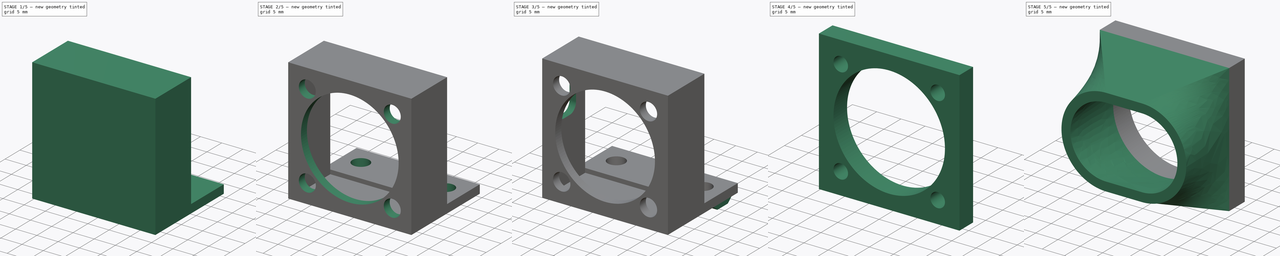
[diagram: build sequence overview — one tinted view per stage of 5, left to right]
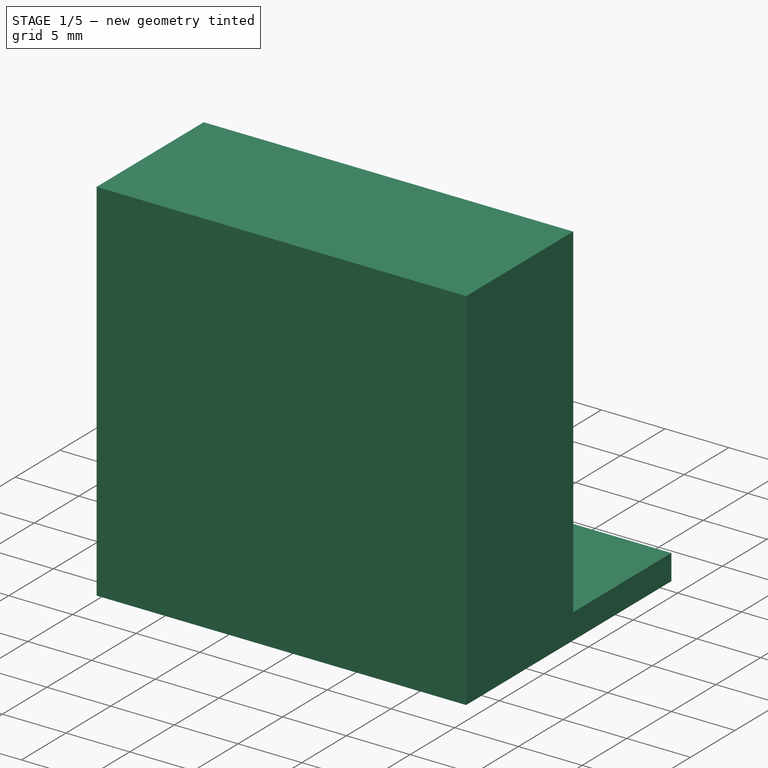
[diagram: stage 1 of 5 — iso view after this stage's code; geometry added in this stage tinted green]
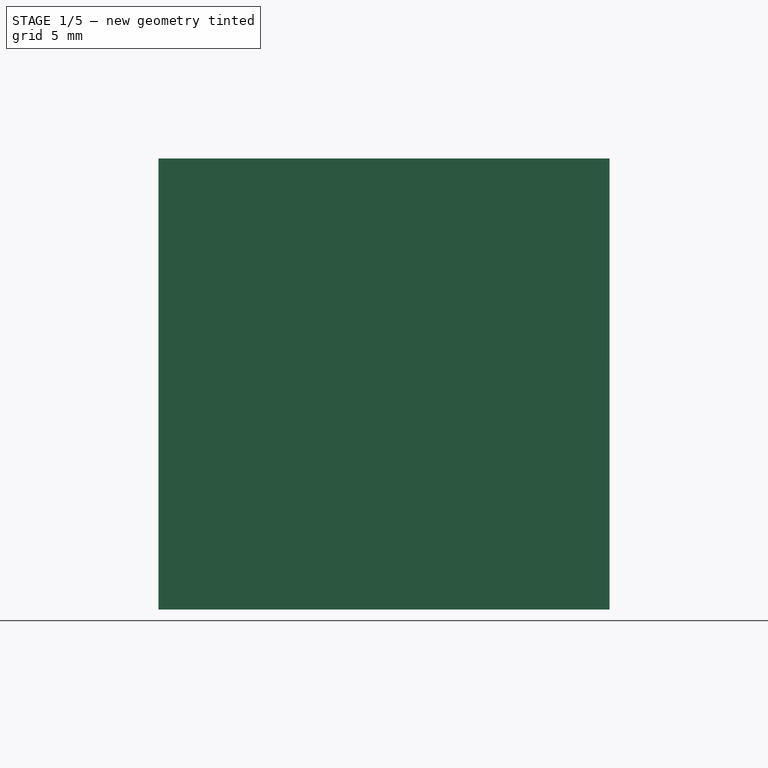
[diagram: stage 1 of 5 — front view after this stage's code; geometry added in this stage tinted green]
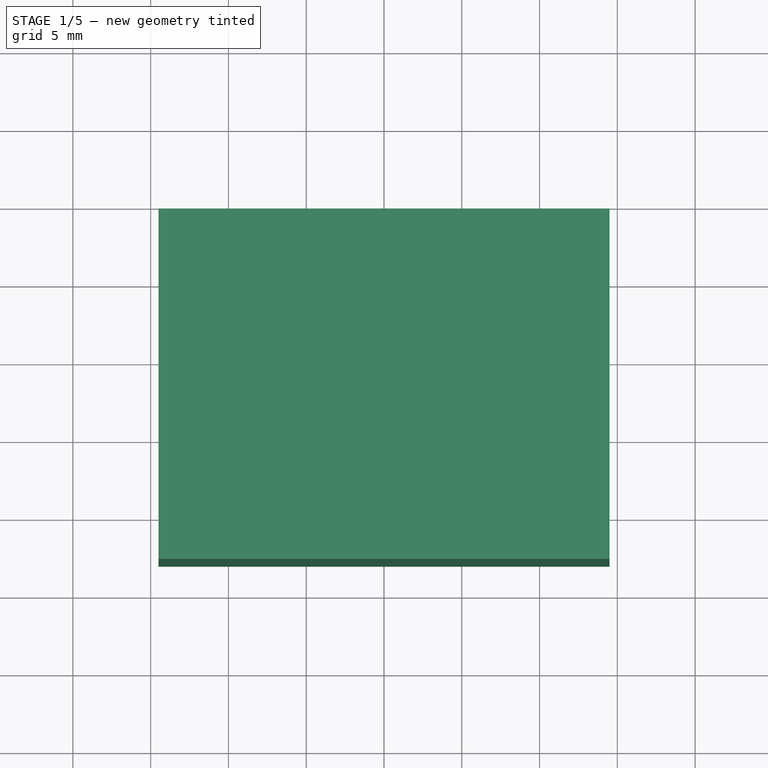
[diagram: stage 1 of 5 — top view after this stage's code; geometry added in this stage tinted green]
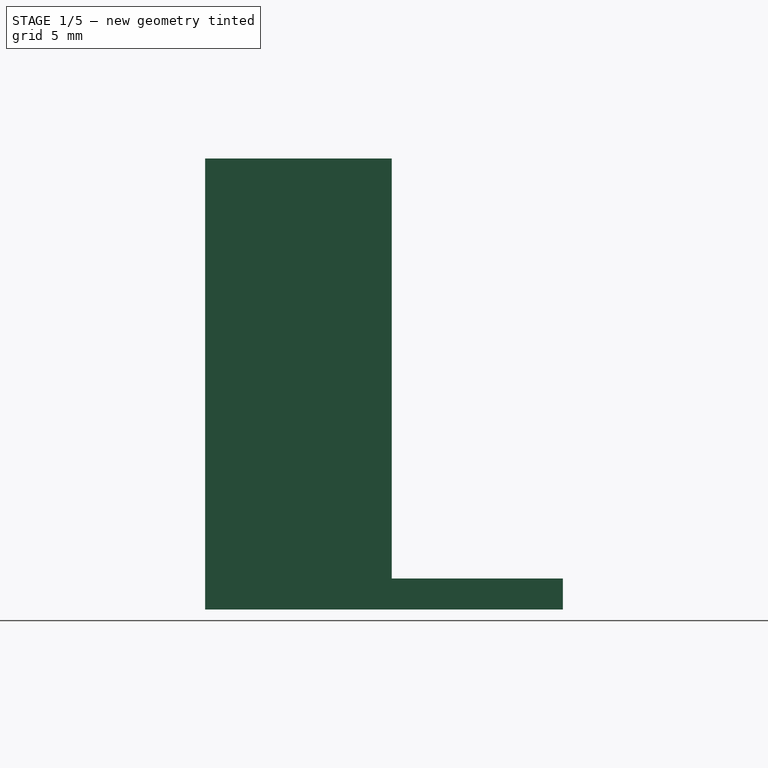
[diagram: stage 1 of 5 — right view after this stage's code; geometry added in this stage tinted green]
FCSTD DOCUMENT  (FreeCAD 1.0R39109 (Git))
Label: BedFans
License: All rights reserved
LicenseURL: https://en.wikipedia.org/wiki/All_rights_reserved
objects: Sketcher::SketchObject×11, PartDesign::Pocket×6, PartDesign::Pad×5, PartDesign::Chamfer×2, PartDesign::Body×2, PartDesign::SubShapeBinder×1, PartDesign::AdditiveLoft×1, PartDesign::Fillet×1, PartDesign::Hole×1
note: 73 computed .brp shape members not serialized (recipe doc carries the construction recipe); baked Part::Feature solids carry a one-line shape summary decoded from their .brp

FEATURE [Sketcher::SketchObject] Sketch  label="BaseMountSketch"
  ArcFitTolerance = 1e-06
  AttachmentSupport = -> [XY_Plane]
  FullyConstrained = true
  MakeInternals = false
  MapMode = 5
  sketch-geometry (5):
    g0: LineSegment StartX=-14.5 StartY=5 StartZ=0 EndX=-14.5 EndY=-5 EndZ=0
    g1: LineSegment StartX=14.5 StartY=-5 StartZ=0 EndX=14.5 EndY=5 EndZ=0
    g2: LineSegment StartX=14.5 StartY=5 StartZ=0 EndX=-14.5 EndY=5 EndZ=0
    g3: GeomPoint [constr] X=0 Y=0 Z=0
    g4: LineSegment StartX=-14.5 StartY=-5 StartZ=0 EndX=14.5 EndY=-5 EndZ=0
  constraints (12):
    c: Coincident(g0,g4)
    c: Coincident(g1,g2)
    c: Coincident(g2,g0)
    c: Vertical(g0)
    c: Vertical(g1)
    c: Horizontal(g2)
    c: Symmetric(g1,g0,g3)
    c: Coincident(g3,g-1)
    c: DistanceX(g4,g1) = 29
    c: DistanceY(g0,g0) = 10
    c: Horizontal(g4)
    c: Coincident(g1,g4)
FEATURE [PartDesign::Pad] Pad  label="BaseMountPad"
  Direction = (0,0,1)
  Length = 2
  Length2 = 10
  Profile = -> Sketch
  ReferenceAxis = -> Sketch [N_Axis]
  Refine = true
  Suppressed = false
  Type = 0
FEATURE [Sketcher::SketchObject] Sketch001  label="BaseFanMountSketch"
  ArcFitTolerance = 1e-06
  AttachmentSupport = -> [YZ_Plane]
  ExternalGeometry = -> [Pad]
  FullyConstrained = true
  MakeInternals = false
  MapMode = 5
  Placement = pos=(0,0,0) rot=(0.57735,0.57735,0.57735;2.0944rad)
  sketch-geometry (6):
    g0: LineSegment StartX=-5 StartY=0 StartZ=0 EndX=-18 EndY=0 EndZ=0
    g1: LineSegment StartX=-18 StartY=0 StartZ=0 EndX=-18 EndY=29 EndZ=0
    g2: LineSegment StartX=-18 StartY=29 StartZ=0 EndX=-6 EndY=29 EndZ=0
    g3: LineSegment StartX=-6 StartY=29 StartZ=0 EndX=-6 EndY=2 EndZ=0
    g4: LineSegment StartX=-6 StartY=2 StartZ=0 EndX=-5 EndY=2 EndZ=0
    g5: LineSegment StartX=-5 StartY=2 StartZ=0 EndX=-5 EndY=0 EndZ=0
  constraints (16):
    c: Coincident(g0,g-3)
    c: PointOnObject(g0,g-1)
    c: Coincident(g1,g0)
    c: Vertical(g1)
    c: Coincident(g2,g1)
    c: Horizontal(g2)
    c: Vertical(g3)
    c: Coincident(g4,g3)
    c: Coincident(g4,g-4)
    c: Horizontal(g4)
    c: Coincident(g3,g2)
    c: DistanceY(g1,g1) = 29
    c: DistanceX(g2,g2) = 12
    c: DistanceX(g0,g-3) = 23
    c: Coincident(g5,g4)
    c: Coincident(g5,g0)
FEATURE [PartDesign::Pad] Pad001  label="BaseFanMountPad"
  BaseFeature = -> Pad
  Direction = (1,0,0)
  Length = 29
  Length2 = 10
  Midplane = true
  Profile = -> Sketch001
  ReferenceAxis = -> Sketch001 [N_Axis]
  Refine = true
  Suppressed = false
  Type = 0
FEATURE [Sketcher::SketchObject] Sketch002  label="BaseFanMountSketch001"
  ArcFitTolerance = 1e-06
  AttachmentSupport = -> [Pad001]
  ExternalGeometry = -> [Pad001]
  FullyConstrained = true
  MakeInternals = false
  MapMode = 5
  Placement = pos=(0,-6,0) rot=(0,0.707107,0.707107;3.14159rad)
  sketch-geometry (5):
    g0: LineSegment StartX=-13 StartY=27 StartZ=0 EndX=-13 EndY=1 EndZ=0
    g1: LineSegment StartX=-13 StartY=1 StartZ=0 EndX=13 EndY=1 EndZ=0
    g2: LineSegment StartX=13 StartY=1 StartZ=0 EndX=13 EndY=27 EndZ=0
    g3: LineSegment StartX=13 StartY=27 StartZ=0 EndX=-13 EndY=27 EndZ=0
    g4: GeomPoint [constr] X=0 Y=14 Z=0
  constraints (13):
    c: Coincident(g0,g1)
    c: Coincident(g1,g2)
    c: Coincident(g2,g3)
    c: Coincident(g3,g0)
    c: Vertical(g0)
    c: Vertical(g2)
    c: Horizontal(g1)
    c: Horizontal(g3)
    c: Symmetric(g2,g0,g4)
    c: PointOnObject(g4,g-2)
    c: DistanceY(g2,g2) = 26
    c: DistanceX(g3,g3) = 26
    c: DistanceY(g0,g-3) = 2
FEATURE [PartDesign::Pocket] Pocket  label="BaseFanMountPocket"
  BaseFeature = -> Pad001
  Direction = (0,-1,2e-16)
  Length = 10
  Length2 = 5
  Profile = -> Sketch002
  ReferenceAxis = -> Sketch002 [N_Axis]
  Refine = true
  Suppressed = false
  Type = 0
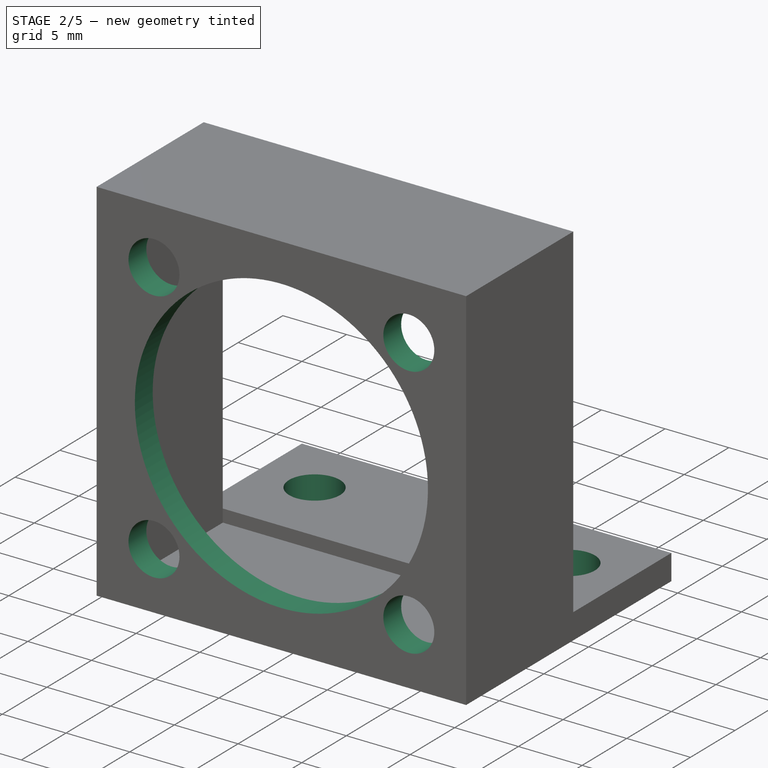
[diagram: stage 2 of 5 — iso view after this stage's code; geometry added in this stage tinted green]
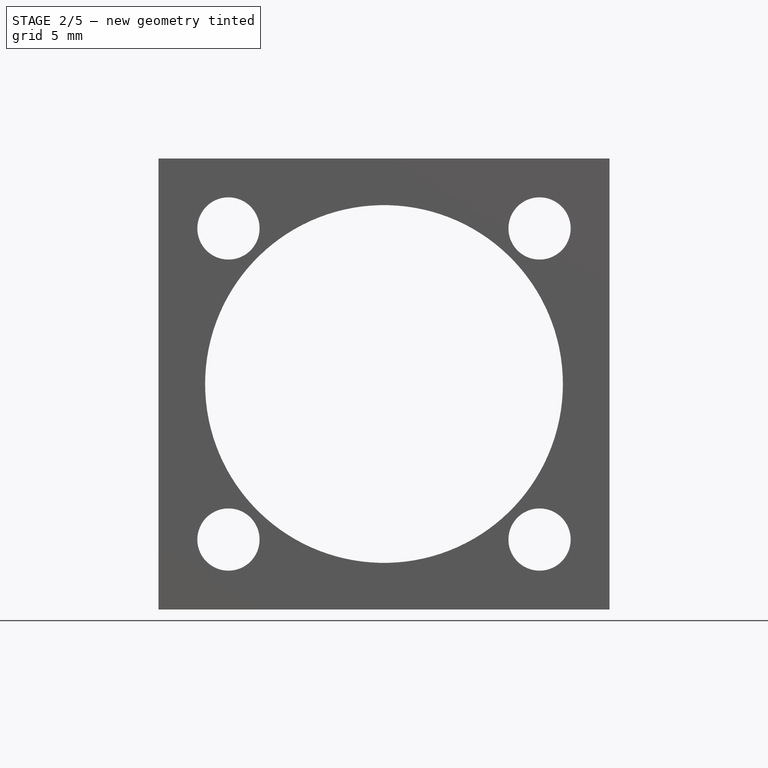
[diagram: stage 2 of 5 — front view after this stage's code; geometry added in this stage tinted green]
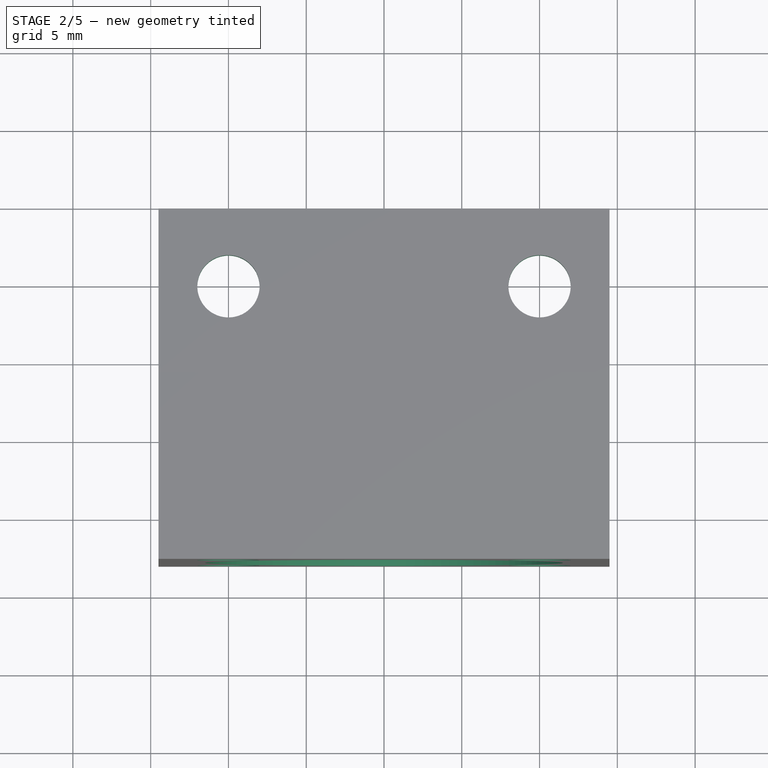
[diagram: stage 2 of 5 — top view after this stage's code; geometry added in this stage tinted green]
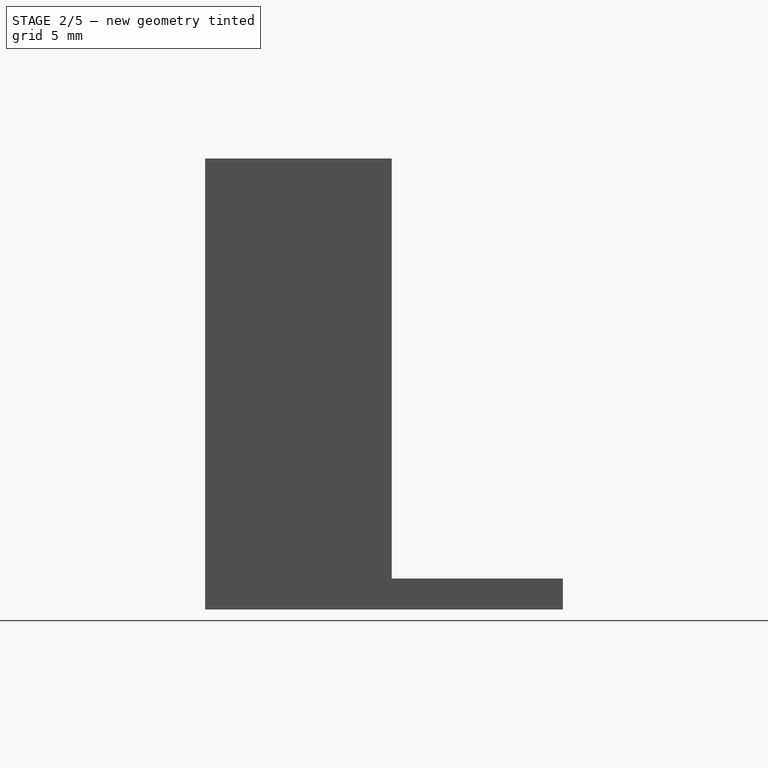
[diagram: stage 2 of 5 — right view after this stage's code; geometry added in this stage tinted green]
FEATURE [Sketcher::SketchObject] Sketch003  label="BaseFanDuctSketch"
  ArcFitTolerance = 1e-06
  AttachmentSupport = -> [Pocket]
  ExternalGeometry = -> [Pocket]
  FullyConstrained = true
  MakeInternals = false
  MapMode = 5
  Placement = pos=(0,-16,3.8e-15) rot=(0,0.707107,0.707107;3.14159rad)
  sketch-geometry (2):
    g0: GeomPoint X=2e-16 Y=14.5 Z=0
    g1: Circle CenterX=2e-16 CenterY=14.5 CenterZ=0 NormalX=0 NormalY=0 NormalZ=1 AngleXU=0 Radius=11.5
  constraints (3):
    c: Coincident(g1,g0)
    c: Diameter(g1) = 23
    c: Symmetric(g-4,g-3,g0)
FEATURE [PartDesign::Pocket] Pocket001  label="BaseFanDuctPocket"
  BaseFeature = -> Pocket
  Direction = (0,-1,2e-16)
  Length = 5
  Length2 = 5
  Profile = -> Sketch003
  ReferenceAxis = -> Sketch003 [N_Axis]
  Refine = true
  Suppressed = false
  Type = 0
FEATURE [Sketcher::SketchObject] Sketch004  label="BaseFanScrewholeSketch"
  ArcFitTolerance = 1e-06
  AttachmentSupport = -> [Pocket001]
  FullyConstrained = true
  MakeInternals = false
  MapMode = 5
  Placement = pos=(0,-16,3.8e-15) rot=(0,0.707107,0.707107;3.14159rad)
  sketch-geometry (9):
    g0: LineSegment [constr] StartX=-10 StartY=4.5 StartZ=0 EndX=10 EndY=4.5 EndZ=0
    g1: LineSegment [constr] StartX=10 StartY=4.5 StartZ=0 EndX=10 EndY=24.5 EndZ=0
    g2: LineSegment [constr] StartX=10 StartY=24.5 StartZ=0 EndX=-10 EndY=24.5 EndZ=0
    g3: LineSegment [constr] StartX=-10 StartY=24.5 StartZ=0 EndX=-10 EndY=4.5 EndZ=0
    g4: GeomPoint [constr] X=-2e-16 Y=14.5 Z=0
    g5: Circle CenterX=-10 CenterY=24.5 CenterZ=0 NormalX=0 NormalY=0 NormalZ=1 AngleXU=0 Radius=2
    g6: Circle CenterX=10 CenterY=24.5 CenterZ=0 NormalX=0 NormalY=0 NormalZ=1 AngleXU=0 Radius=2
    g7: Circle CenterX=10 CenterY=4.5 CenterZ=0 NormalX=0 NormalY=0 NormalZ=1 AngleXU=0 Radius=2
    g8: Circle CenterX=-10 CenterY=4.5 CenterZ=0 NormalX=0 NormalY=0 NormalZ=1 AngleXU=0 Radius=2
  constraints (20):
    c: Coincident(g0,g1)
    c: Coincident(g1,g2)
    c: Coincident(g2,g3)
    c: Coincident(g3,g0)
    c: Horizontal(g0)
    c: Horizontal(g2)
    c: Vertical(g1)
    c: Vertical(g3)
    c: Symmetric(g2,g0,g4)
    c: Coincident(g4,g-3)
    c: DistanceX(g2,g2) = 20
    c: DistanceY(g1,g1) = 20
    c: Coincident(g5,g2)
    c: Coincident(g6,g1)
    c: Coincident(g7,g0)
    c: Coincident(g8,g0)
    c: Equal(g5,g8)
    c: Equal(g5,g6)
    c: Equal(g5,g7)
    c: Diameter(g5) = 4
FEATURE [PartDesign::Pocket] Pocket003  label="BaseFanScrewholePocket"
  BaseFeature = -> Pocket001
  Direction = (0,-1,2e-16)
  Length = 5
  Length2 = 5
  Profile = -> Sketch004
  ReferenceAxis = -> Sketch004 [N_Axis]
  Refine = true
  Suppressed = false
  Type = 0
FEATURE [Sketcher::SketchObject] Sketch008  label="BaseMountSkrewholeSketch"
  ArcFitTolerance = 1e-06
  AttachmentSupport = -> [Pocket003]
  ExternalGeometry = -> [Pocket003]
  FullyConstrained = true
  MakeInternals = false
  MapMode = 5
  Placement = pos=(0,0,0) rot=(1,0,0;3.14159rad)
  sketch-geometry (2):
    g0: Circle CenterX=-10 CenterY=-4e-16 CenterZ=0 NormalX=0 NormalY=0 NormalZ=1 AngleXU=0 Radius=2
    g1: Circle CenterX=10 CenterY=-4e-16 CenterZ=0 NormalX=0 NormalY=0 NormalZ=1 AngleXU=0 Radius=2
  constraints (5):
    c: Symmetric(g0,g1,g-2)
    c: DistanceY(g-4,g0) = 5
    c: Equal(g0,g1)
    c: Diameter(g0) = 4
    c: DistanceX(g0,g1) = 20
FEATURE [PartDesign::Pocket] Pocket004  label="BaseMountSkrewholePocket"
  BaseFeature = -> Pocket003
  Direction = (0,0,1)
  Length = 5
  Length2 = 5
  Profile = -> Sketch008
  ReferenceAxis = -> Sketch008 [N_Axis]
  Refine = true
  Suppressed = false
  Type = 0
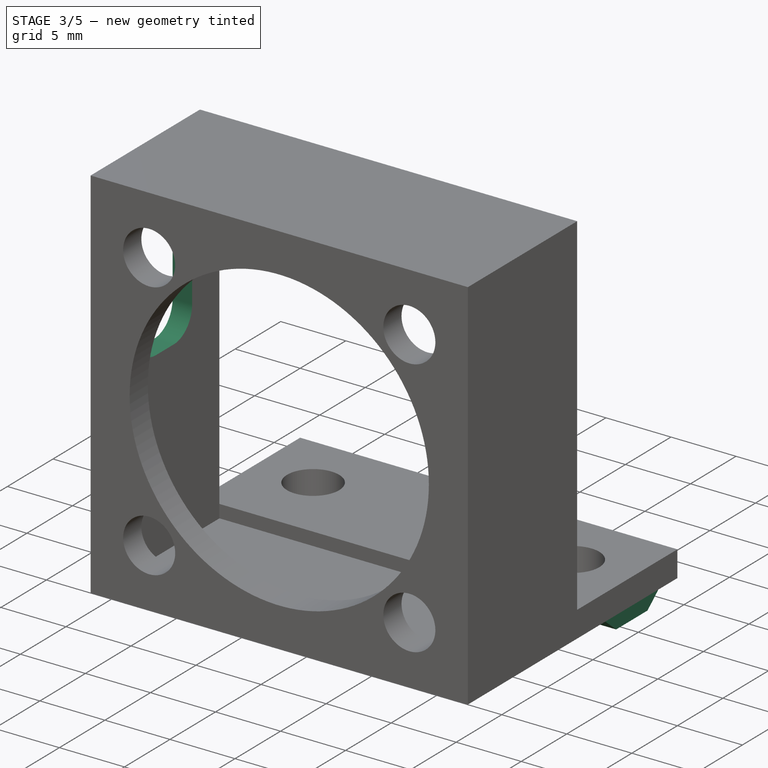
[diagram: stage 3 of 5 — iso view after this stage's code; geometry added in this stage tinted green]
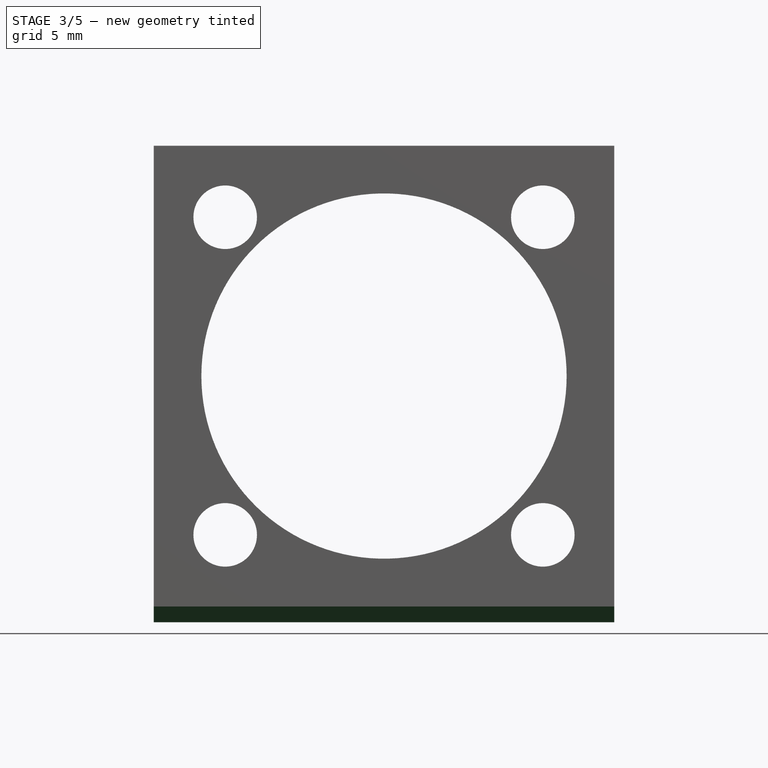
[diagram: stage 3 of 5 — front view after this stage's code; geometry added in this stage tinted green]
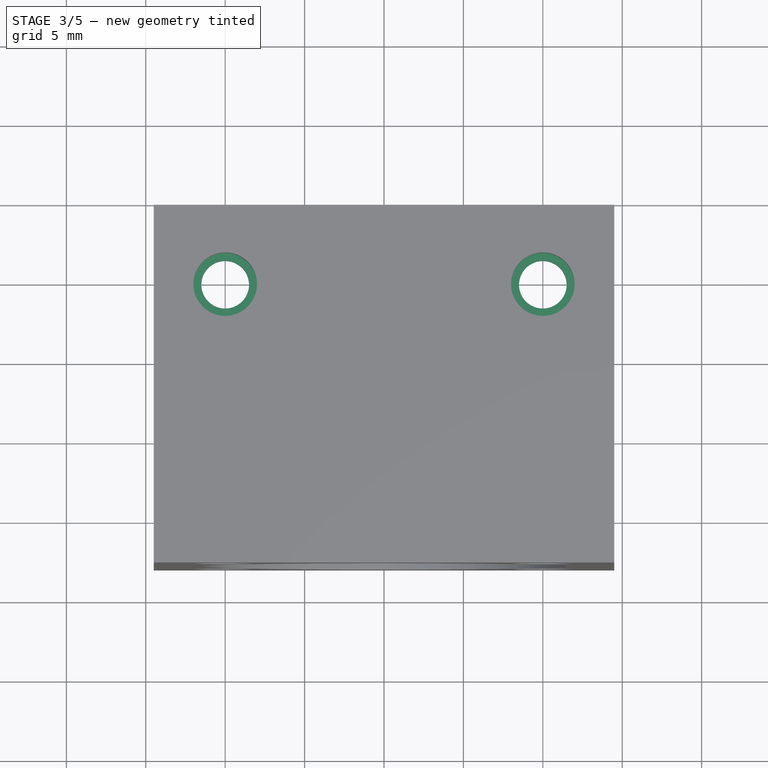
[diagram: stage 3 of 5 — top view after this stage's code; geometry added in this stage tinted green]
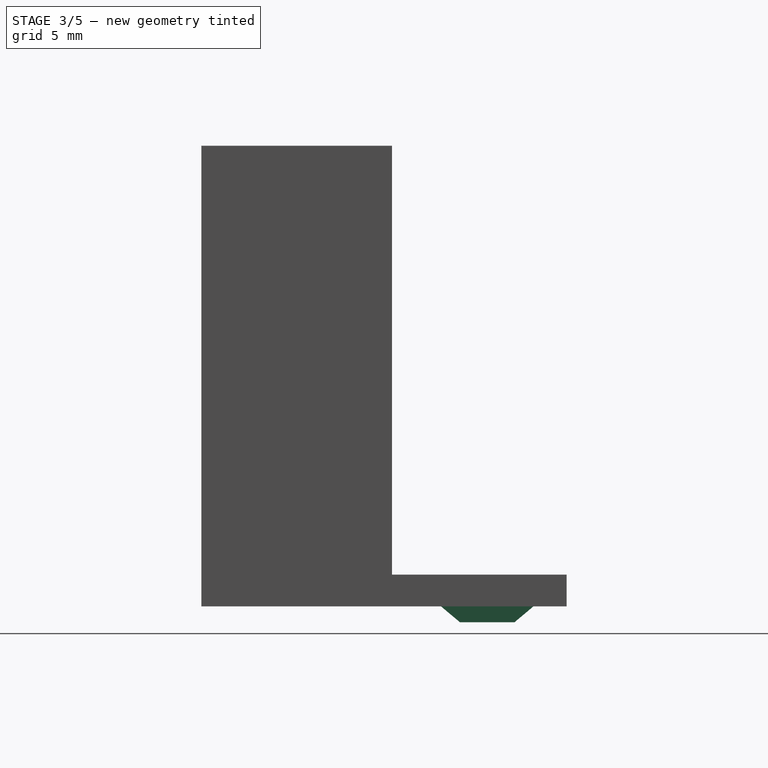
[diagram: stage 3 of 5 — right view after this stage's code; geometry added in this stage tinted green]
FEATURE [Sketcher::SketchObject] Sketch009  label="BaseMountExtrutionLipSketch"
  ArcFitTolerance = 1e-06
  AttachmentSupport = -> [Pocket004]
  ExternalGeometry = -> [Pocket004]
  FullyConstrained = true
  MakeInternals = false
  MapMode = 5
  Placement = pos=(0,0,0) rot=(1,0,0;3.14159rad)
  sketch-geometry (7):
    g0: Circle CenterX=-10 CenterY=0 CenterZ=0 NormalX=0 NormalY=0 NormalZ=1 AngleXU=0 Radius=1.5
    g1: Circle CenterX=10 CenterY=0 CenterZ=0 NormalX=0 NormalY=0 NormalZ=1 AngleXU=0 Radius=1.5
    g2: LineSegment StartX=-14.5 StartY=2.9 StartZ=0 EndX=-14.5 EndY=-2.9 EndZ=0
    g3: LineSegment StartX=-14.5 StartY=-2.9 StartZ=0 EndX=14.5 EndY=-2.9 EndZ=0
    g4: LineSegment StartX=14.5 StartY=-2.9 StartZ=0 EndX=14.5 EndY=2.9 EndZ=0
    g5: LineSegment StartX=14.5 StartY=2.9 StartZ=0 EndX=-14.5 EndY=2.9 EndZ=0
    g6: GeomPoint [constr] X=0 Y=0 Z=0
  constraints (16):
    c: Coincident(g0,g-5)
    c: Coincident(g1,g-6)
    c: Equal(g0,g1)
    c: Diameter(g0) = 3
    c: Coincident(g2,g3)
    c: Coincident(g3,g4)
    c: Coincident(g4,g5)
    c: Coincident(g5,g2)
    c: Vertical(g2)
    c: Vertical(g4)
    c: Horizontal(g3)
    c: Horizontal(g5)
    c: Symmetric(g4,g2,g6)
    c: Coincident(g6,g-1)
    c: DistanceY(g2,g2) = 5.8
    c: Vertical(g-3,g2)
FEATURE [PartDesign::Pad] Pad005  label="BaseMountExtrutionLipPad"
  BaseFeature = -> Pocket004
  Direction = (0,0,-1)
  Length = 1
  Length2 = 10
  Profile = -> Sketch009
  ReferenceAxis = -> Sketch009 [N_Axis]
  Refine = true
  Suppressed = false
  Type = 0
FEATURE [PartDesign::Chamfer] Chamfer  label="BaseMountExtrutionLipChamfer"
  Angle = 50
  Base = -> Pad005 [Edge64,Edge37]
  BaseFeature = -> Pad005
  ChamferType = 2
  FlipDirection = false
  Refine = true
  Size = 0.99
  Size2 = 1
  SupportTransform = false
  Suppressed = false
  UseAllEdges = false
FEATURE [Sketcher::SketchObject] Sketch010  label="BaseFanWireSketch"
  ArcFitTolerance = 1e-06
  FullyConstrained = true
  MakeInternals = false
  MapMode = 5
  Placement = pos=(-14.5,0,0) rot=(0.57735,-0.57735,-0.57735;2.0944rad)
  sketch-geometry (4):
    g0: LineSegment StartX=9 StartY=25 StartZ=0 EndX=9 EndY=15 EndZ=0
    g1: LineSegment StartX=9 StartY=15 StartZ=0 EndX=15 EndY=15 EndZ=0
    g2: LineSegment StartX=15 StartY=15 StartZ=0 EndX=15 EndY=25 EndZ=0
    g3: LineSegment StartX=15 StartY=25 StartZ=0 EndX=9 EndY=25 EndZ=0
  constraints (12):
    c: Coincident(g0,g1)
    c: Coincident(g1,g2)
    c: Coincident(g2,g3)
    c: Coincident(g3,g0)
    c: Vertical(g0)
    c: Vertical(g2)
    c: Horizontal(g1)
    c: Horizontal(g3)
    c: DistanceX(g1,g-3) = 5
    c: DistanceX(g3,g3) = 6
    c: DistanceY(g2,g2) = 10
    c: DistanceY(g-3,g1) = 15
FEATURE [PartDesign::Pocket] Pocket005  label="BasefanWirePocket"
  BaseFeature = -> Chamfer
  Direction = (1,0,0)
  Length = 5
  Length2 = 5
  Profile = -> Sketch010
  ReferenceAxis = -> Sketch010 [N_Axis]
  Refine = true
  Suppressed = false
  Type = 0
FEATURE [PartDesign::Fillet] Fillet
  Base = -> Pocket005 [Edge55,Edge57,Edge58,Edge60]
  BaseFeature = -> Pocket005
  Radius = 2
  Refine = true
  SupportTransform = false
  Suppressed = false
  UseAllEdges = false
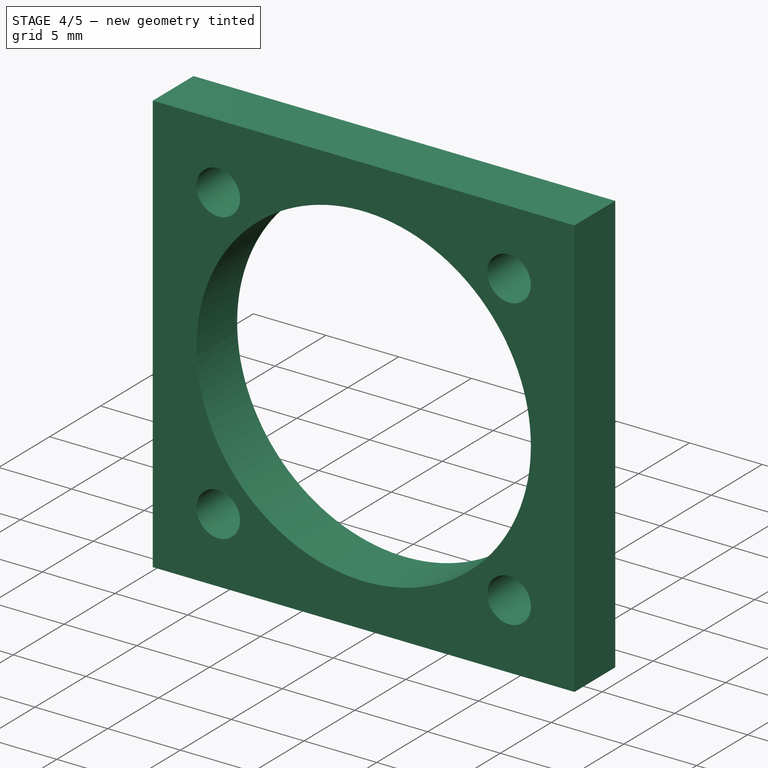
[diagram: stage 4 of 5 — iso view after this stage's code; geometry added in this stage tinted green]
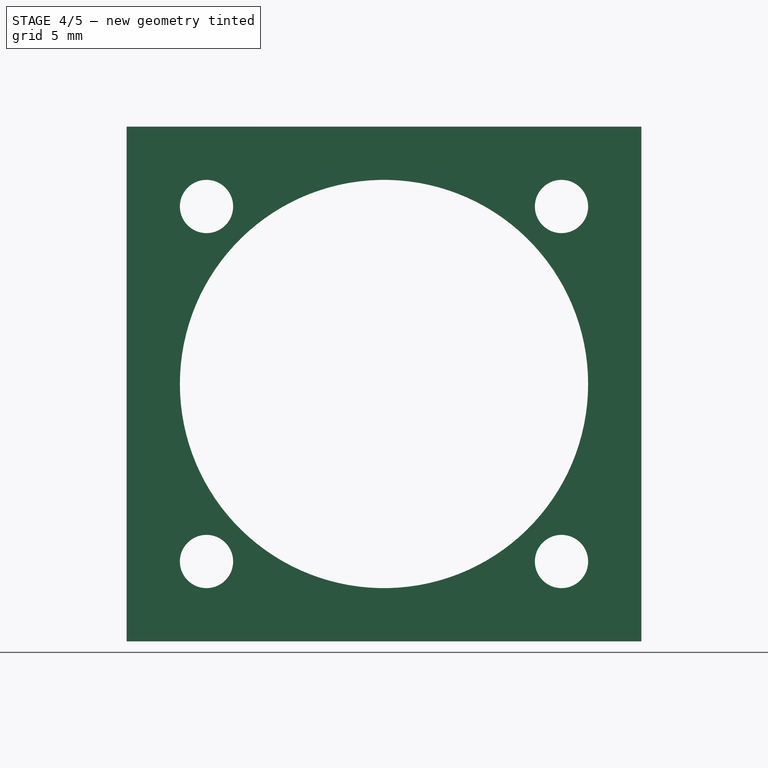
[diagram: stage 4 of 5 — front view after this stage's code; geometry added in this stage tinted green]
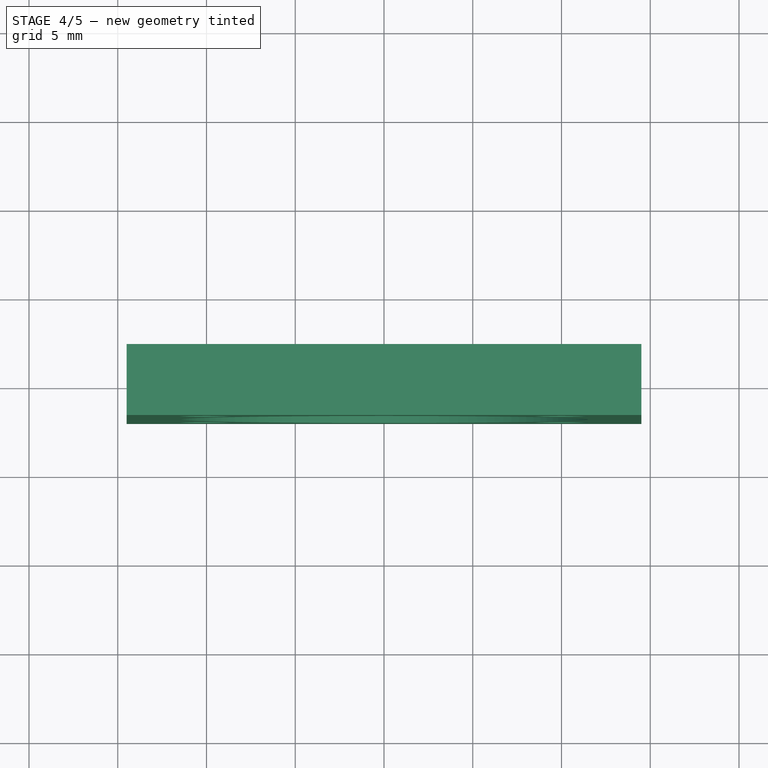
[diagram: stage 4 of 5 — top view after this stage's code; geometry added in this stage tinted green]
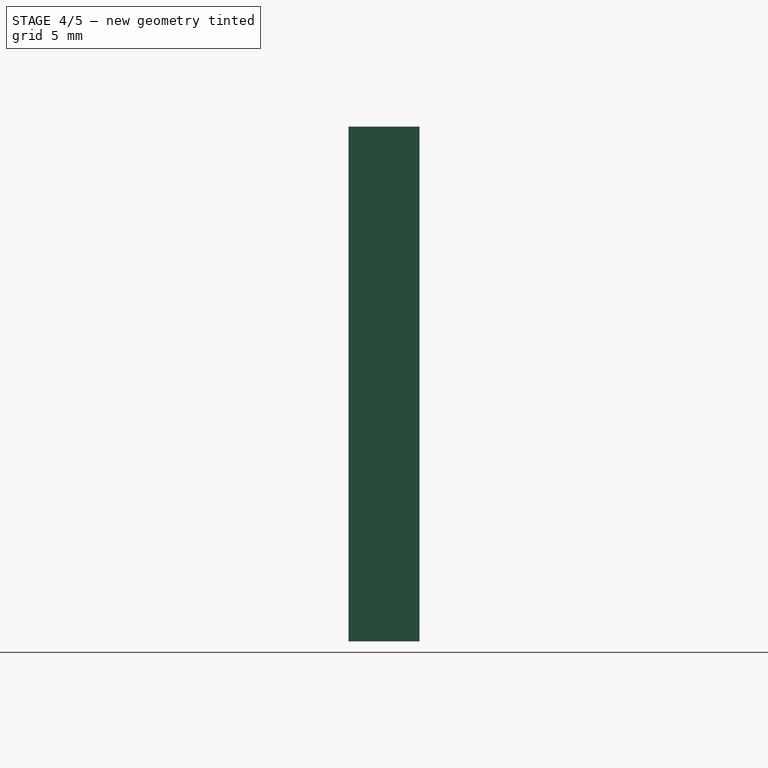
[diagram: stage 4 of 5 — right view after this stage's code; geometry added in this stage tinted green]
FEATURE [PartDesign::SubShapeBinder] Binder  label="MainBodyBinder"
  BindCopyOnChange = 0
  BindMode = 0
  ClaimChildren = false
  Context = -> Body001 [Binder.]
  Fuse = false
  MakeFace = true
  OffsetFill = false
  OffsetIntersection = false
  OffsetJoinType = 0
  OffsetOpenResult = false
  PartialLoad = false
  Refine = true
  Relative = true
  Support = -> [Body[Pocket003.]]
  _Version = 2
FEATURE [Sketcher::SketchObject] Sketch005  label="FanTubeBaseSketch"
  ArcFitTolerance = 1e-06
  AttachmentSupport = -> [Binder]
  ExternalGeometry = -> [Binder]
  FullyConstrained = true
  MakeInternals = false
  MapMode = 5
  Placement = pos=(0,-18,0) rot=(1,0,0;1.5708rad)
  sketch-geometry (9):
    g0: LineSegment StartX=-14.5 StartY=0 StartZ=0 EndX=14.5 EndY=0 EndZ=0
    g1: LineSegment StartX=14.5 StartY=0 StartZ=0 EndX=14.5 EndY=29 EndZ=0
    g2: LineSegment StartX=14.5 StartY=29 StartZ=0 EndX=-14.5 EndY=29 EndZ=0
    g3: LineSegment StartX=-14.5 StartY=29 StartZ=0 EndX=-14.5 EndY=0 EndZ=0
    g4: Circle CenterX=10 CenterY=24.5 CenterZ=0 NormalX=0 NormalY=0 NormalZ=1 AngleXU=0 Radius=1.5
    g5: Circle CenterX=-10 CenterY=24.5 CenterZ=0 NormalX=0 NormalY=0 NormalZ=1 AngleXU=0 Radius=1.5
    g6: Circle CenterX=-10 CenterY=4.5 CenterZ=0 NormalX=0 NormalY=0 NormalZ=1 AngleXU=0 Radius=1.5
    g7: Circle CenterX=10 CenterY=4.5 CenterZ=0 NormalX=0 NormalY=0 NormalZ=1 AngleXU=0 Radius=1.5
    g8: Circle CenterX=-2e-16 CenterY=14.5 CenterZ=0 NormalX=0 NormalY=0 NormalZ=1 AngleXU=0 Radius=11.5
  constraints (20):
    c: Coincident(g0,g1)
    c: Coincident(g1,g2)
    c: Coincident(g2,g3)
    c: Coincident(g3,g0)
    c: Horizontal(g0)
    c: Horizontal(g2)
    c: Vertical(g1)
    c: Vertical(g3)
    c: Coincident(g0,g-7)
    c: Coincident(g1,g-8)
    c: Coincident(g4,g-3)
    c: Coincident(g5,g-4)
    c: Coincident(g6,g-5)
    c: Coincident(g7,g-6)
    c: Equal(g7,g4)
    c: Equal(g7,g5)
    c: Equal(g7,g6)
    c: Diameter(g7) = 3
    c: Coincident(g8,g-9)
    c: Equal(g8,g-9)
FEATURE [PartDesign::Pad] Pad002  label="FanTubeBasePad"
  Direction = (0,-1,2e-16)
  Length = 4
  Length2 = 10
  Profile = -> Sketch005
  ReferenceAxis = -> Sketch005 [N_Axis]
  Refine = true
  Suppressed = false
  Type = 0
FEATURE [PartDesign::Pocket] Pocket006
  BaseFeature = -> Fillet
  Direction = (0,1,-2e-16)
  Length = 5
  Length2 = 5
  Profile = -> Fillet [Face26]
  Refine = true
  Suppressed = false
  Type = 1
FEATURE [PartDesign::Chamfer] Chamfer001
  Angle = 45
  Base = -> Pocket006 [Edge63,Edge57]
  BaseFeature = -> Pocket006
  ChamferType = 0
  FlipDirection = false
  Refine = true
  Size = 5
  Size2 = 1
  SupportTransform = false
  Suppressed = false
  UseAllEdges = false
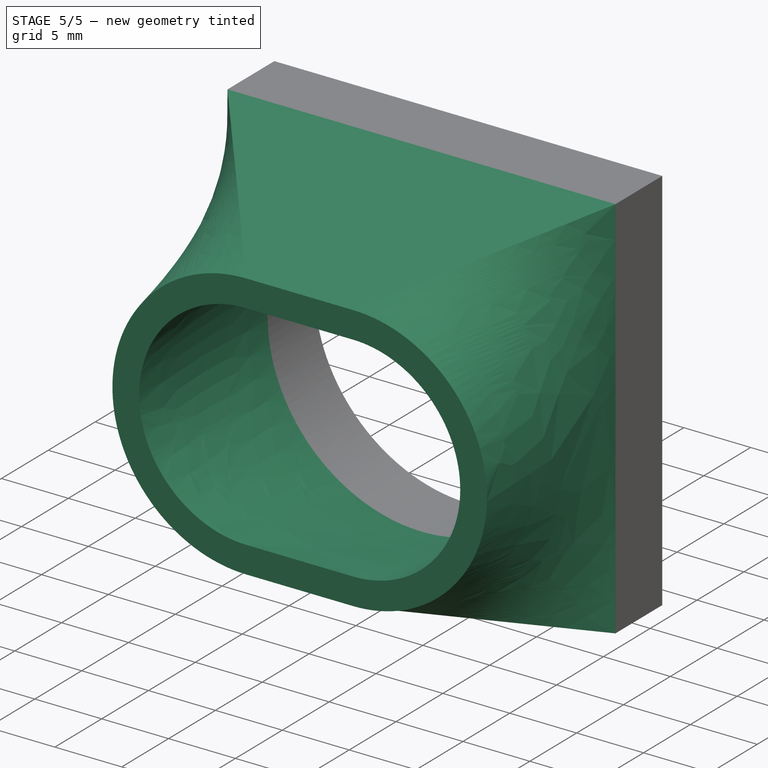
[diagram: stage 5 of 5 — iso view after this stage's code; geometry added in this stage tinted green]
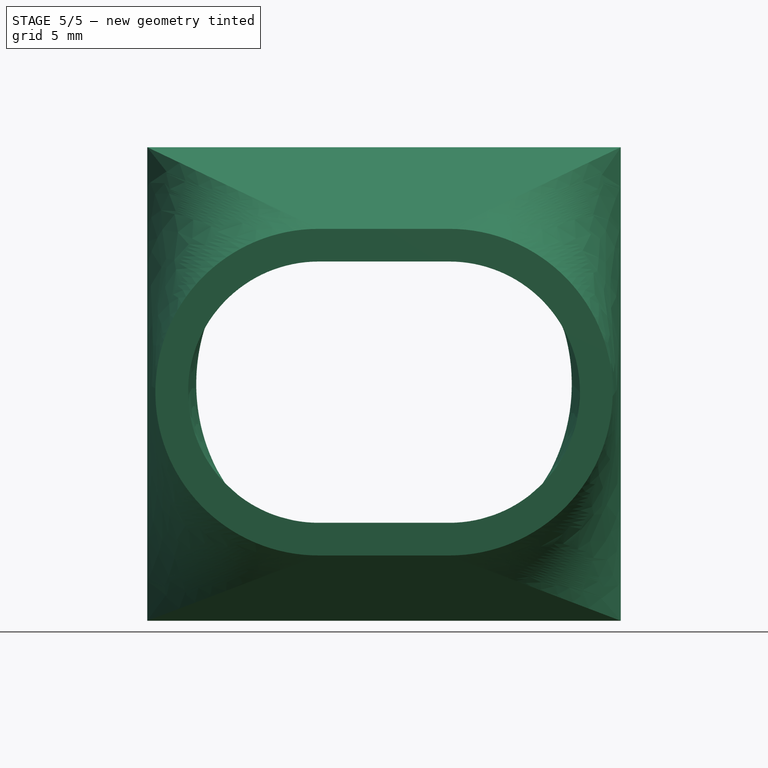
[diagram: stage 5 of 5 — front view after this stage's code; geometry added in this stage tinted green]
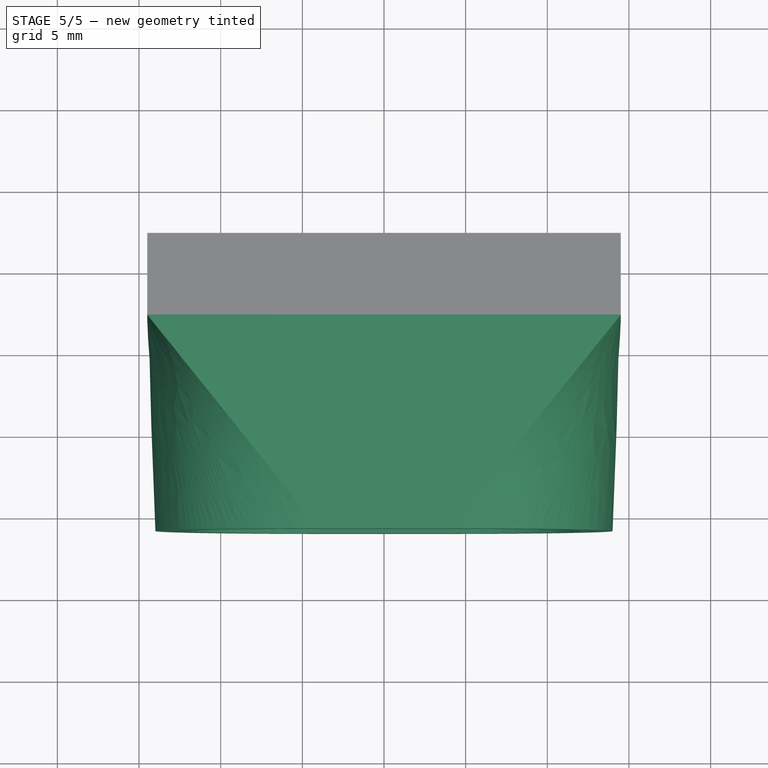
[diagram: stage 5 of 5 — top view after this stage's code; geometry added in this stage tinted green]
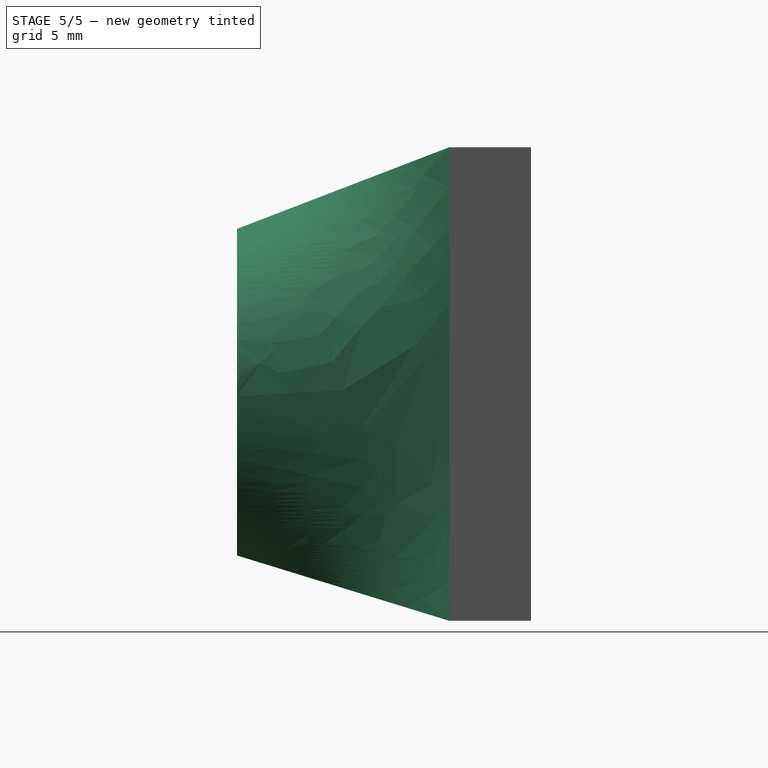
[diagram: stage 5 of 5 — right view after this stage's code; geometry added in this stage tinted green]
FEATURE [Sketcher::SketchObject] Sketch007  label="FanTubeBaseLayerSketch"
  ArcFitTolerance = 1e-06
  AttachmentSupport = -> [Pad002]
  ExternalGeometry = -> [Pad002]
  FullyConstrained = true
  MakeInternals = false
  MapMode = 5
  Placement = pos=(0,-22,5.8e-15) rot=(1,0,0;1.5708rad)
  sketch-geometry (5):
    g0: LineSegment StartX=-14.5 StartY=29 StartZ=0 EndX=-14.5 EndY=0 EndZ=0
    g1: LineSegment StartX=-14.5 StartY=0 StartZ=0 EndX=14.5 EndY=0 EndZ=0
    g2: LineSegment StartX=14.5 StartY=0 StartZ=0 EndX=14.5 EndY=29 EndZ=0
    g3: LineSegment StartX=14.5 StartY=29 StartZ=0 EndX=-14.5 EndY=29 EndZ=0
    g4: Circle CenterX=-2e-16 CenterY=14.5 CenterZ=0 NormalX=0 NormalY=0 NormalZ=1 AngleXU=0 Radius=11.5
  constraints (12):
    c: Coincident(g0,g1)
    c: Coincident(g1,g2)
    c: Coincident(g2,g3)
    c: Coincident(g3,g0)
    c: Vertical(g0)
    c: Vertical(g2)
    c: Horizontal(g1)
    c: Horizontal(g3)
    c: Coincident(g0,g-3)
    c: Coincident(g1,g-4)
    c: Coincident(g4,g-5)
    c: Equal(g4,g-5)
FEATURE [PartDesign::Pad] Pad003  label="FanTubeBaseLayerPad"
  BaseFeature = -> Pad002
  Direction = (0,-1,2e-16)
  Length = 1
  Length2 = 10
  Profile = -> Sketch007
  ReferenceAxis = -> Sketch007 [N_Axis]
  Refine = true
  Suppressed = false
  Type = 0
FEATURE [Sketcher::SketchObject] Sketch011
  ArcFitTolerance = 1e-06
  AttachmentOffset = pos=(0,2,13) rot=(0,0,1;0rad)
  AttachmentSupport = -> [Pad003]
  ExternalGeometry = -> [Pad003]
  FullyConstrained = true
  MakeInternals = false
  MapMode = 5
  Placement = pos=(0,-36,2) rot=(1,0,0;1.5708rad)
  sketch-geometry (10):
    g0: ArcOfCircle CenterX=-4 CenterY=12 CenterZ=0 NormalX=0 NormalY=0 NormalZ=1 AngleXU=0 Radius=10 StartAngle=1.5708 EndAngle=4.71239
    g1: ArcOfCircle CenterX=4 CenterY=12 CenterZ=0 NormalX=0 NormalY=0 NormalZ=1 AngleXU=0 Radius=10 StartAngle=4.71239 EndAngle=7.85398
    g2: LineSegment StartX=-4 StartY=22 StartZ=0 EndX=4 EndY=22 EndZ=0
    g3: LineSegment StartX=-4 StartY=2 StartZ=0 EndX=4 EndY=2 EndZ=0
    g4: GeomPoint X=0 Y=12 Z=0
    g5: ArcOfCircle CenterX=4 CenterY=12 CenterZ=0 NormalX=0 NormalY=0 NormalZ=1 AngleXU=0 Radius=8 StartAngle=4.71239 EndAngle=7.85398
    g6: ArcOfCircle CenterX=-4 CenterY=12 CenterZ=0 NormalX=0 NormalY=0 NormalZ=1 AngleXU=0 Radius=8 StartAngle=1.5708 EndAngle=4.71239
    g7: LineSegment StartX=4 StartY=4 StartZ=0 EndX=-4 EndY=4 EndZ=0
    g8: LineSegment StartX=4 StartY=20 StartZ=0 EndX=-4 EndY=20 EndZ=0
    g9: GeomPoint X=0 Y=12 Z=0
  constraints (21):
    c: Tangent(g0,g2) = 1.5708
    c: Tangent(g0,g3) = -1.5708
    c: Tangent(g1,g2) = 1.5708
    c: Tangent(g1,g3) = -1.5708
    c: Equal(g0,g1)
    c: Horizontal(g2)
    c: Symmetric(g0,g1,g4)
    c: PointOnObject(g4,g-2)
    c: DistanceY(g0,g0) = 20
    c: DistanceX(g0,g1) = 8
    c: DistanceY(g-1,g4) = 12
    c: Tangent(g5,g7) = 1.5708
    c: Tangent(g5,g8) = -1.5708
    c: Tangent(g6,g7) = 1.5708
    c: Tangent(g6,g8) = -1.5708
    c: Equal(g5,g6)
    c: Horizontal(g8)
    c: Symmetric(g5,g6,g9)
    c: Coincident(g9,g4)
    c: Equal(g2,g8)
    c: DistanceY(g5,g1) = 2
FEATURE [PartDesign::AdditiveLoft] AdditiveLoft
  BaseFeature = -> Pad003
  Closed = false
  Profile = -> Pad003 [Face11]
  Refine = true
  Ruled = false
  Sections = -> [Sketch011]
  Suppressed = false
FEATURE [PartDesign::Body] Body  label="BadBreathBase"
  AllowCompound = false
  Group = -> [Sketch,Pad,Sketch001,Pad001,Sketch002,Pocket,Sketch003,Pocket001,Sketch004,Pocket003,Sketch008,Pocket004,Sketch009,Pad005,Chamfer,Sketch010,Pocket005,Fillet,Pocket006,Chamfer001]
  Origin = -> Origin
  Tip = -> Chamfer001
FEATURE [PartDesign::Hole] Hole
  BaseFeature = -> AdditiveLoft
  CustomThreadClearance = 0
  Depth = 5
  DepthType = 0
  Diameter = 2.52
  DrillForDepth = false
  DrillPoint = 1
  DrillPointAngle = 118
  HoleCutCountersinkAngle = 90
  HoleCutCustomValues = false
  HoleCutDepth = 0
  HoleCutDiameter = 6.1
  HoleCutType = 0
  ModelThread = true
  Profile = -> AdditiveLoft [Edge9,Edge8,Edge6,Edge7]
  Refine = true
  Suppressed = false
  Tapered = false
  TaperedAngle = 90
  ThreadClass = 0
  ThreadDepth = 5
  ThreadDepthType = 0
  ThreadDirection = 0
  ThreadFit = 2
  ThreadSize = 9
  ThreadType = 1
  Threaded = true
  UseCustomThreadClearance = false
FEATURE [PartDesign::Body] Body001  label="BadBreathDuct"
  AllowCompound = false
  Group = -> [Binder,Sketch005,Pad002,Sketch007,Pad003,Sketch011,AdditiveLoft,Hole]
  Origin = -> Origin001
  Tip = -> Hole
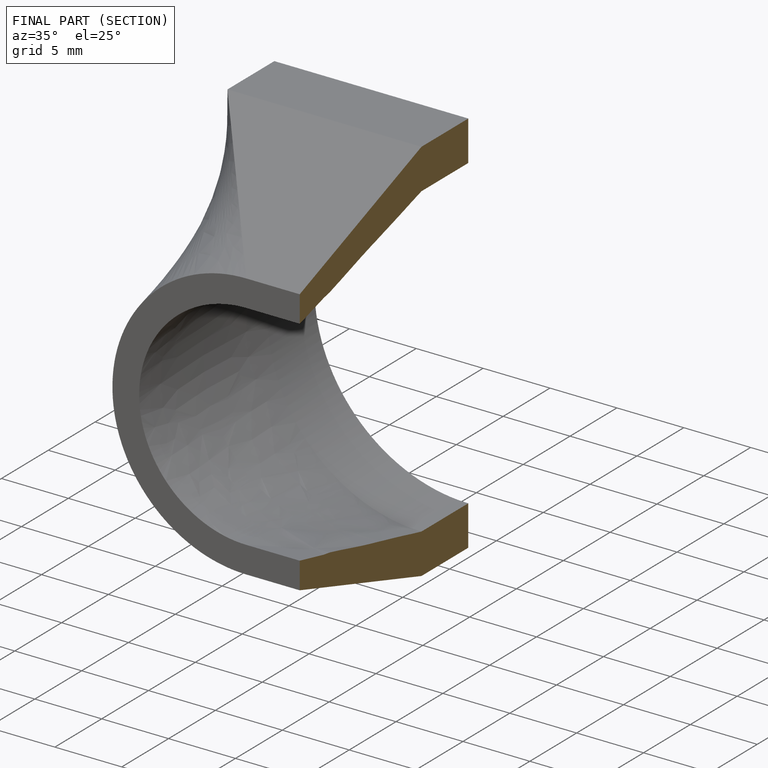
[diagram: finished part — half-section view (interior)]
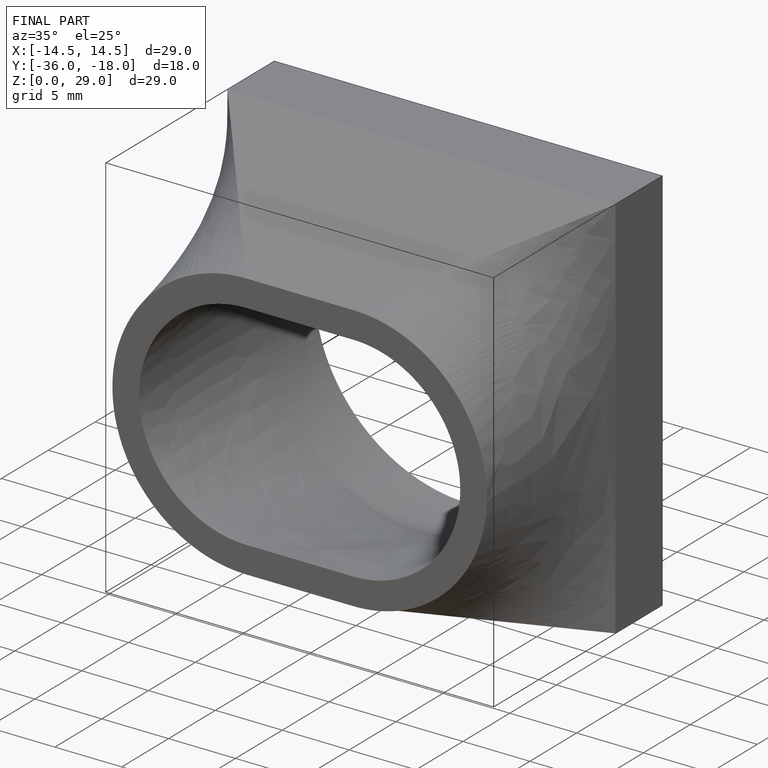
[diagram: finished part — iso view with bounding-box wireframe]
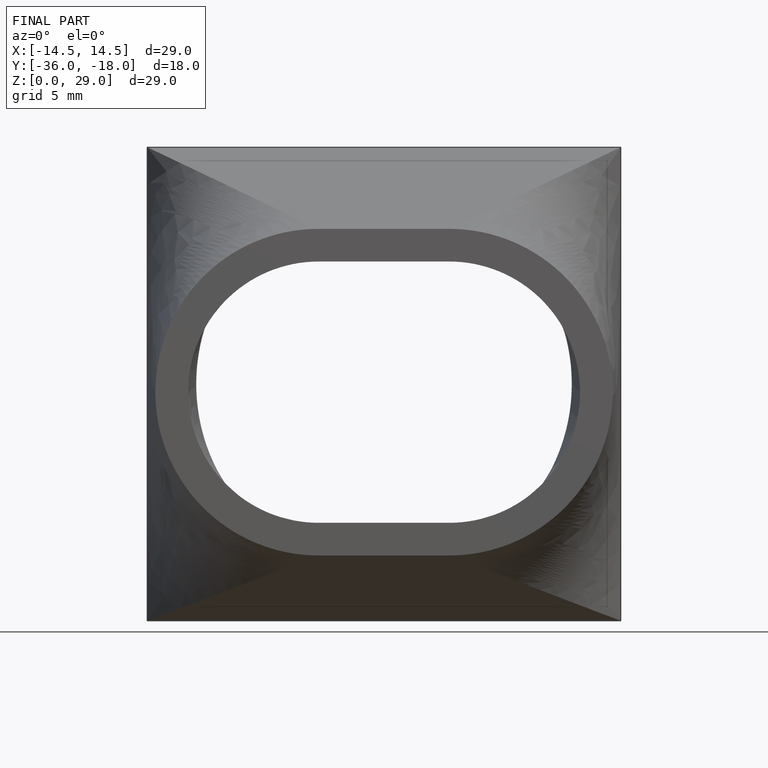
[diagram: finished part — front view with bounding-box wireframe]
